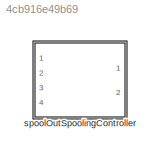
MODEL slx_4cb916e49b69
KIND library
CONFIG AbsTol = auto
CONFIG EnableMultiTasking = off
CONFIG FixedStep = auto
CONFIG MaxStep = auto
CONFIG MinStep = auto
CONFIG RelTol = 1e-3
CONFIG SampleTimeConstraint = Unconstrained
CONFIG Solver = VariableStepAuto
CONFIG SolverName = VariableStepAuto
CONFIG StartTime = 0.0
CONFIG StopTime = 10.0
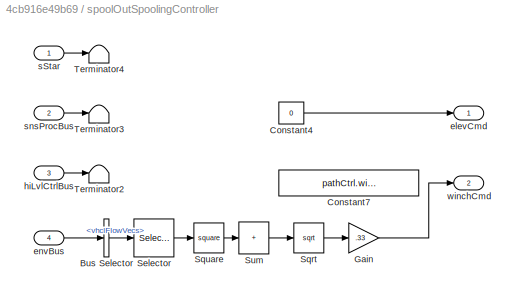
BLOCK [SubSystem] spoolOutSpoolingController
  Ports = [4, 2]
  RequestExecContextInheritance = off
BLOCK [BusSelector] spoolOutSpoolingController/Bus Selector
  OutputSignals = vhclFlowVecs
  Ports = [1, 1]
BLOCK [Constant] spoolOutSpoolingController/Constant4
  Value = 0
BLOCK [Constant] spoolOutSpoolingController/Constant7
  Commented = on
  Value = pathCtrl.winchSpeedOut.Value
BLOCK [Gain] spoolOutSpoolingController/Gain
  Gain = .33
BLOCK [Selector] spoolOutSpoolingController/Selector
  IndexOptions = Select all,Index vector (dialog)
  Indices = [1 3],5
  InputPortWidth = 3
  NumberOfDimensions = 2
  OutputSizes = 1,1
  Ports = [1, 1]
BLOCK [Sqrt] spoolOutSpoolingController/Sqrt
BLOCK [Math] spoolOutSpoolingController/Square
  Operator = square
  Ports = [1, 1]
BLOCK [Sum] spoolOutSpoolingController/Sum
  IconShape = rectangular
  Inputs = +
  Ports = [1, 1]
BLOCK [Terminator] spoolOutSpoolingController/Terminator2
BLOCK [Terminator] spoolOutSpoolingController/Terminator3
BLOCK [Terminator] spoolOutSpoolingController/Terminator4
BLOCK [Outport] spoolOutSpoolingController/elevCmd
  VectorParamsAs1DForOutWhenUnconnected = off
BLOCK [Inport] spoolOutSpoolingController/envBus
  OutDataTypeStr = Bus: envBus
  Port = 4
BLOCK [Inport] spoolOutSpoolingController/hiLvlCtrlBus
  OutDataTypeStr = Bus: hiLvlCtrlBus
  Port = 3
BLOCK [Inport] spoolOutSpoolingController/sStar 
BLOCK [Inport] spoolOutSpoolingController/snsProcBus
  OutDataTypeStr = Bus: sensorsProcessingBus
  Port = 2
BLOCK [Outport] spoolOutSpoolingController/winchCmd 
  Port = 2
  VectorParamsAs1DForOutWhenUnconnected = off
LINE spoolOutSpoolingController/Bus Selector:1 -> spoolOutSpoolingController/Selector:1
LINE spoolOutSpoolingController/Constant4:1 -> spoolOutSpoolingController/elevCmd:1
LINE spoolOutSpoolingController/Gain:1 -> spoolOutSpoolingController/winchCmd :1
LINE spoolOutSpoolingController/Selector:1 -> spoolOutSpoolingController/Square:1
LINE spoolOutSpoolingController/Sqrt:1 -> spoolOutSpoolingController/Gain:1
LINE spoolOutSpoolingController/Square:1 -> spoolOutSpoolingController/Sum:1
LINE spoolOutSpoolingController/Sum:1 -> spoolOutSpoolingController/Sqrt:1
LINE spoolOutSpoolingController/envBus:1 -> spoolOutSpoolingController/Bus Selector:1
LINE spoolOutSpoolingController/hiLvlCtrlBus:1 -> spoolOutSpoolingController/Terminator2:1
LINE spoolOutSpoolingController/sStar :1 -> spoolOutSpoolingController/Terminator4:1
LINE spoolOutSpoolingController/snsProcBus:1 -> spoolOutSpoolingController/Terminator3:1
